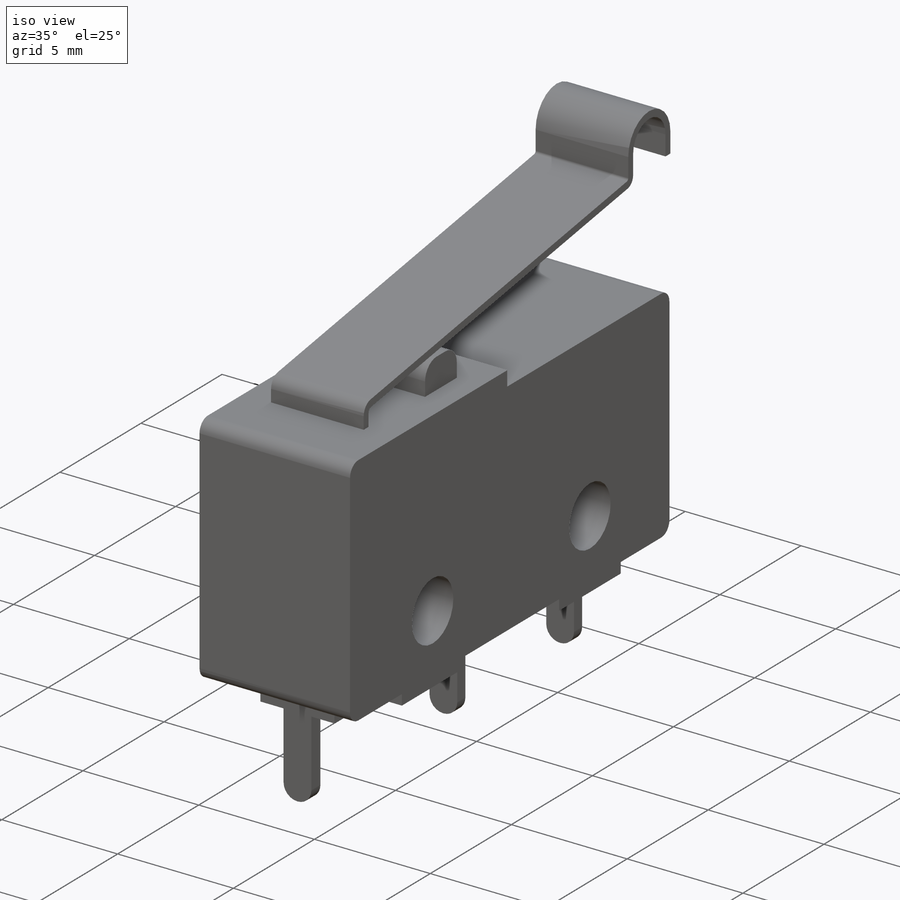
[diagram: iso view]
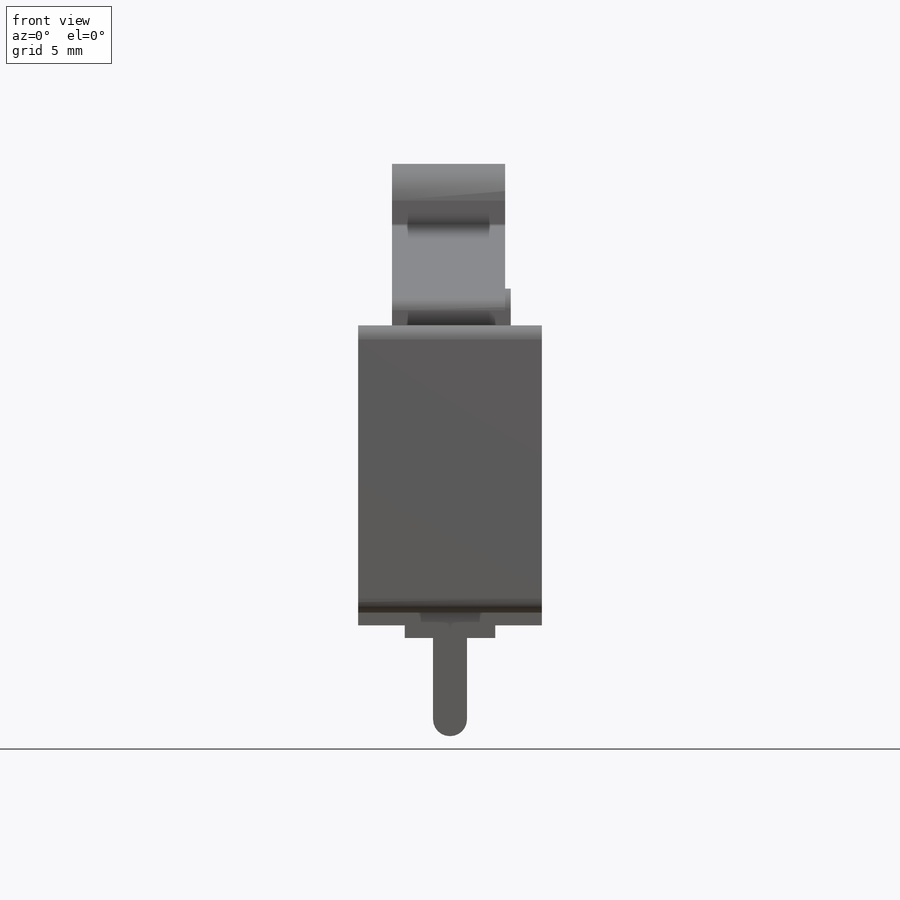
[diagram: front view]
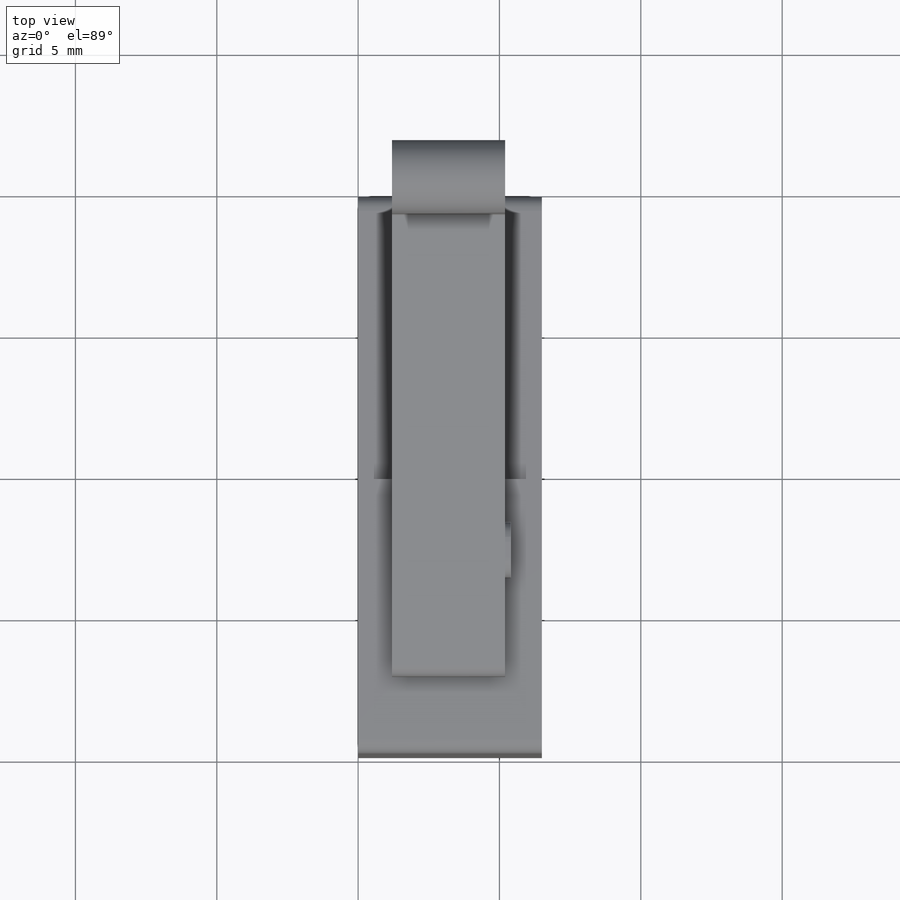
[diagram: top view]
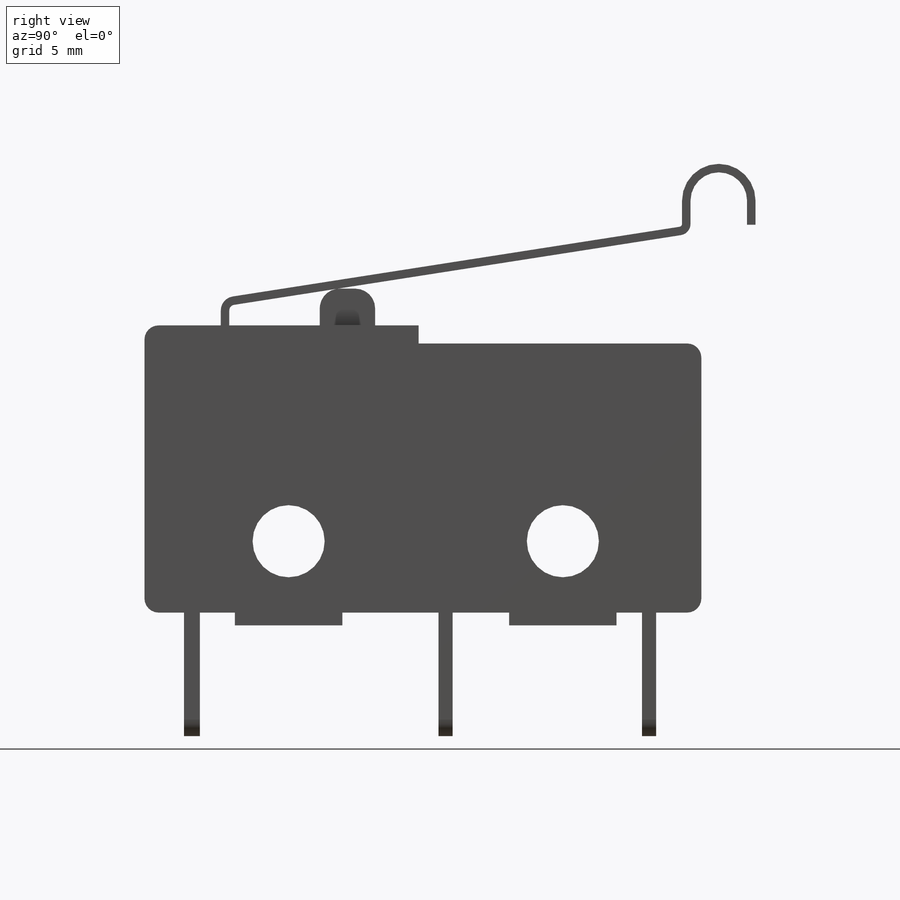
[diagram: right view]
SOLIDWORKS PART (.sldprt)
format: sldprt  version: not decoded by parser v0  size: 363,008 bytes
history: native  units: mm
features: sketch x5, extrude x4, fillet x2, material x1, plane x1 (+13 scaffold rows collapsed)
feature tree (26):
  scaffold x13  (default folders/planes/origin — collapsed)
  material  "Matériau <non spécifié>"
  sketch  "Sketch1"  dims[c1.D11=0.5mm c1.D12=2.55mm c1.D13=2.55mm c1.D1=9.52mm c1.D2=10.16mm c1.D3=9.52mm c1.D4=9.52mm c1.D5=9.52mm c2.D3=3.8mm c2.D4=3.8mm c2.D5=0.45mm c2.D6=0.45mm c2.D7=19.7mm c2.D8=3.2mm c2.D9=9.7mm c2.D10=5.9mm c2.D14=1.7mm c2.D15=1.7mm c2.D2=10.16mm c2.D13=9.52mm c3.D7=19.7mm c3.D8=3.2mm c3.D9=9.7mm c3.D3=9.7mm]
  extrude  "Boss-Extrude1"  Depth=6.5mm
  sketch  "Sketch2"  dims[D1=1.96mm D2=3.53mm D3=1.1mm D4=6.2mm]
  extrude  "Boss-Extrude2"  Depth=1.3mm
  fillet  "Fillet1"  Radius=0.7mm
  sketch  "Sketch3"  dims[D1=3.2mm D2=0.56mm D3=3.2mm D4=0.5mm D5=3.2mm D6=0.5mm D7=1.6mm D8=1.4mm D9=6.7mm]
  extrude  "Boss-Extrude3"  Depth=0.9mm
  sketch  "Sketch4"  dims[D1=1.2mm D2=1.2mm D3=1.2mm]
  extrude  "Boss-Extrude4"  Depth=3.47mm
  fillet  "Fillet2"  Radius=0.59mm
  plane  "Plan1"  Offset=3.2mm
  sketch  "Esquisse1"  dims[c1.D2=2.0mm c1.D5=0.2mm c1.D3=0.4mm c1.D1=3.0mm c2.D3=18.0mm c2.D4=0.7mm c2.D6=16.0mm c2.D7=~0.002851mm c2.D1=2.0mm c2.D2=2.0mm c2.D5=0.0001mm c3.D6=0.3mm c3.D7=5.0mm]
decode coverage: 11 of 11 modeling features carry decoded parameters
note: ~ marks probable driven/reference dimensions
note: suppression state not decoded; provenance and decode notes live in map.json
